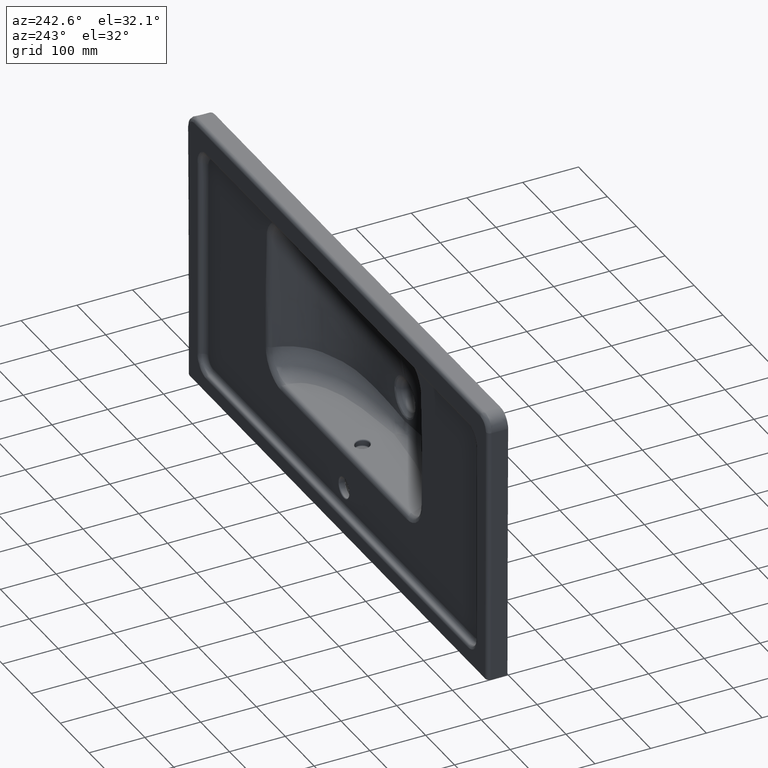
[diagram: clean part render]
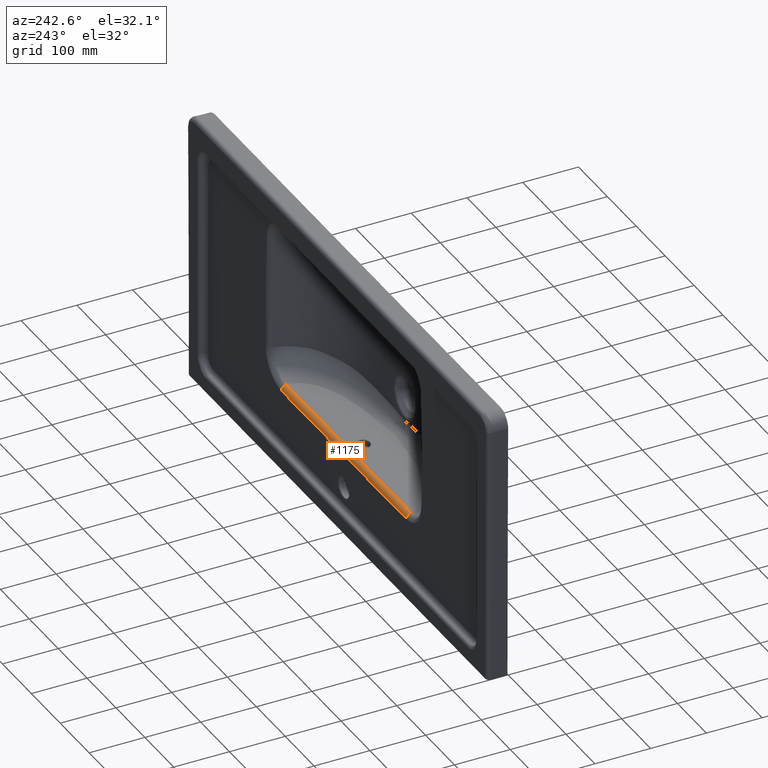
[diagram: same view with one face highlighted and labeled with its STEP entity id]
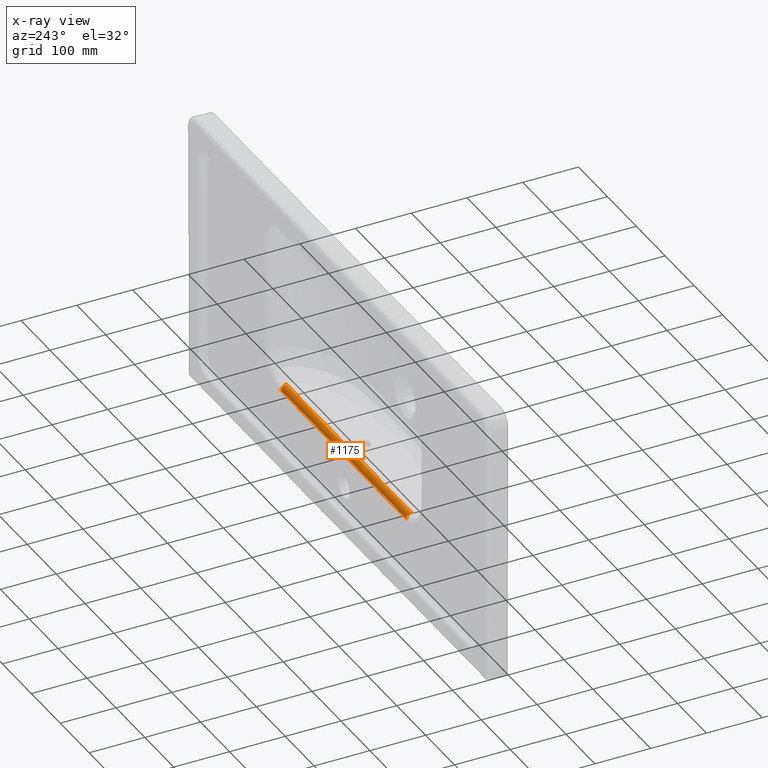
[diagram: x-ray of the same camera — body ghosted, the highlighted face saturated]
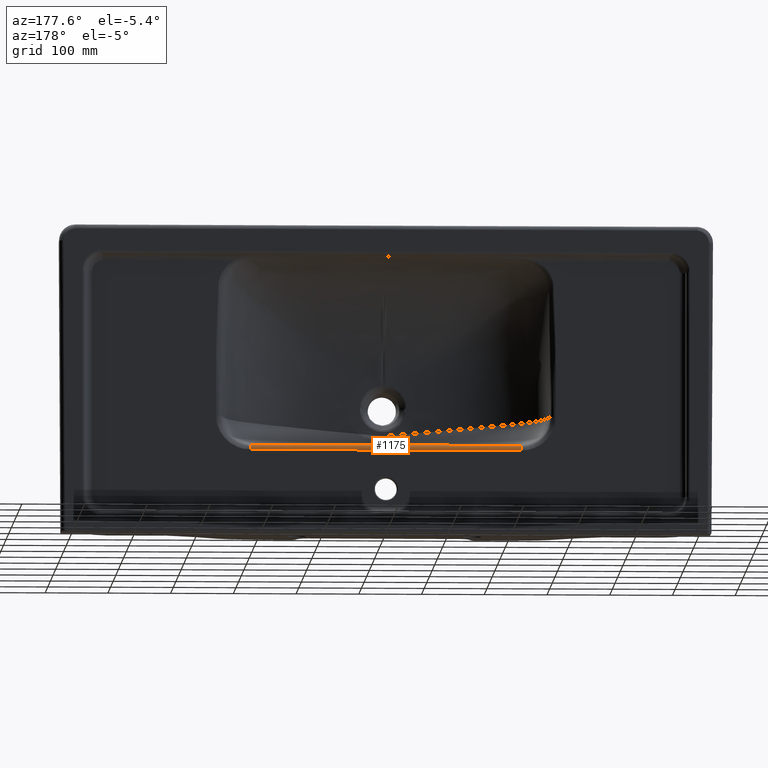
[diagram: same view with one face highlighted and labeled with its STEP entity id]
A machine part, auxiliary view. The second image highlights one B-rep face of the part: STEP entity #1175.
The next image is the same camera in x-ray: the body ghosted, the highlighted face saturated — about 0% of this face is hidden behind the body in this view.
A second angle (auxiliary view) of the same face is appended — the face is thin or edge-on in the first view.
In plain terms, the highlighted cylindrical surface (edge-blend (fillet) strip) has radius 9 mm, axis along (-1, 0, 0).
Its self-contained STEP definition (entity closure, byte-faithful):
#1175=ADVANCED_FACE('',(#1770),#1594,.T.);
#1594=CYLINDRICAL_SURFACE('',#8820,9.);
#1770=FACE_OUTER_BOUND('',#2358,.T.);
#2358=EDGE_LOOP('',(#4570,#4571,#4572,#4573));
#3102=B_SPLINE_CURVE_WITH_KNOTS('',3,(#25901,#25902,#25903,#25904,#25905,
#25906),.UNSPECIFIED.,.F.,.F.,(4,2,4),(0.,0.5,1.),.UNSPECIFIED.);
#3123=B_SPLINE_CURVE_WITH_KNOTS('',3,(#29476,#29477,#29478,#29479,#29480,
#29481),.UNSPECIFIED.,.F.,.F.,(4,2,4),(0.,0.5,1.),.UNSPECIFIED.);
#4570=ORIENTED_EDGE('',*,*,#7177,.F.);
#4571=ORIENTED_EDGE('',*,*,#7692,.F.);
#4572=ORIENTED_EDGE('',*,*,#7266,.F.);
#4573=ORIENTED_EDGE('',*,*,#7667,.T.);
#6395=VERTEX_POINT('',#10258);
#6397=VERTEX_POINT('',#10424);
#6485=VERTEX_POINT('',#11040);
#6486=VERTEX_POINT('',#11042);
#7177=EDGE_CURVE('',#6397,#6395,#8499,.T.);
#7266=EDGE_CURVE('',#6485,#6486,#8519,.T.);
#7667=EDGE_CURVE('',#6485,#6395,#3102,.T.);
#7692=EDGE_CURVE('',#6486,#6397,#3123,.T.);
#8499=LINE('',#10425,#8575);
#8519=LINE('',#11041,#8595);
#8575=VECTOR('',#9105,1.);
#8595=VECTOR('',#9155,1.);
#8820=AXIS2_PLACEMENT_3D('',#29482,#9439,#9440);
#9105=DIRECTION('',(-1.,-1.00795385296426E-035,1.0707705283783E-018));
#9155=DIRECTION('',(1.,0.,-1.0707705283783E-018));
#9439=DIRECTION('',(-1.,0.,1.0707705283783E-018));
#9440=DIRECTION('',(0.,0.,1.));
#10258=CARTESIAN_POINT('',(-220.207187202046,-37.6458250139513,-95.610042432882));
#10424=CARTESIAN_POINT('',(212.207187202046,-37.6458250139513,-95.610042432882));
#10425=CARTESIAN_POINT('',(-221.134275630575,-37.6458258401276,-95.6100423895842));
#11040=CARTESIAN_POINT('',(-220.207665948996,-29.1168494463141,-104.597708193896));
#11041=CARTESIAN_POINT('',(3.33066907387547E-013,-29.1168494463141,-104.597708202375));
#11042=CARTESIAN_POINT('',(212.207665948996,-29.1168494463141,-104.597708193896));
#25901=CARTESIAN_POINT('',(-220.207665948996,-29.1168494463141,-104.597708202375));
#25902=CARTESIAN_POINT('',(-220.207665948996,-29.1168494463141,-102.320053528523));
#25903=CARTESIAN_POINT('',(-220.207665948996,-30.0206460906068,-100.054669347561));
#25904=CARTESIAN_POINT('',(-220.207665948996,-33.1563141238002,-96.7503646947025));
#25905=CARTESIAN_POINT('',(-220.207665948996,-35.3712926128466,-95.7292456249315));
#25906=CARTESIAN_POINT('',(-220.207665948996,-37.6458258401276,-95.6100423895842));
#29476=CARTESIAN_POINT('',(212.207665948996,-29.1168494463141,-104.597708193896));
#29477=CARTESIAN_POINT('',(212.207657428637,-29.1168494463141,-102.320056804102));
#29478=CARTESIAN_POINT('',(212.207644754133,-30.0206433327953,-100.054676228127));
#29479=CARTESIAN_POINT('',(212.20763674839,-33.1563019657066,-96.7503735140821));
#29480=CARTESIAN_POINT('',(212.207641957839,-35.3712739128263,-95.7292525842411));
#29481=CARTESIAN_POINT('',(212.207665949022,-37.6458022402234,-95.610043616265));
#29482=CARTESIAN_POINT('',(661.189391889384,-38.1168494463141,-104.597708202375));